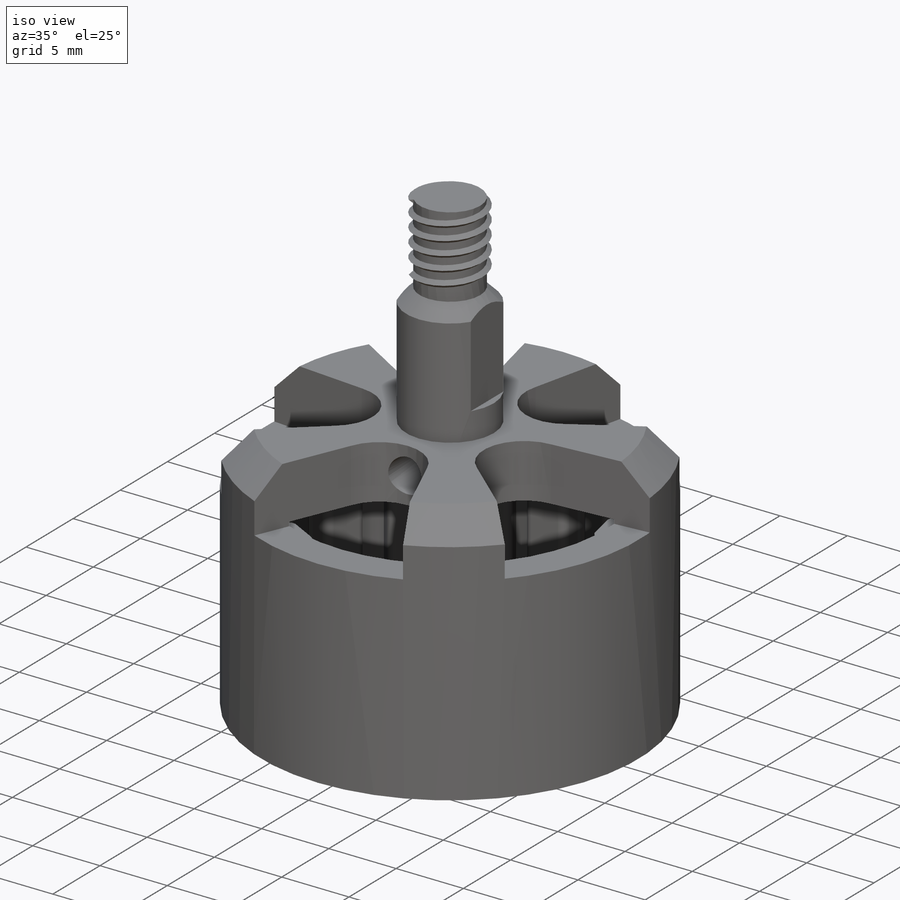
[diagram: iso view]
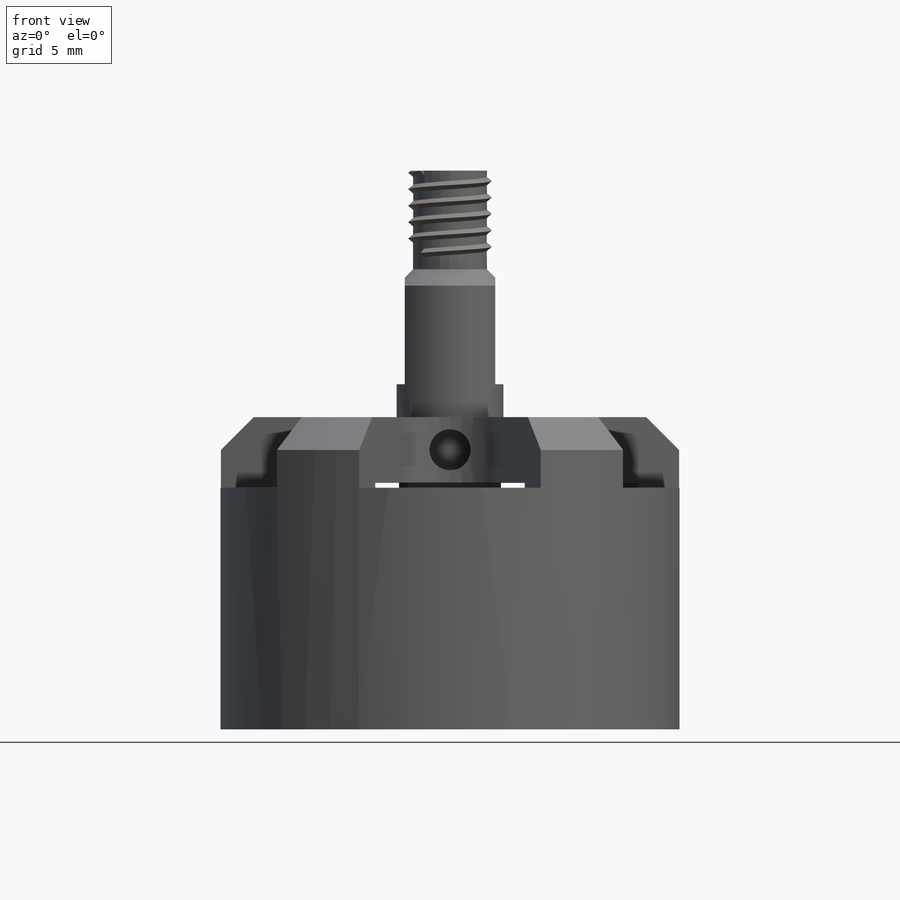
[diagram: front view]
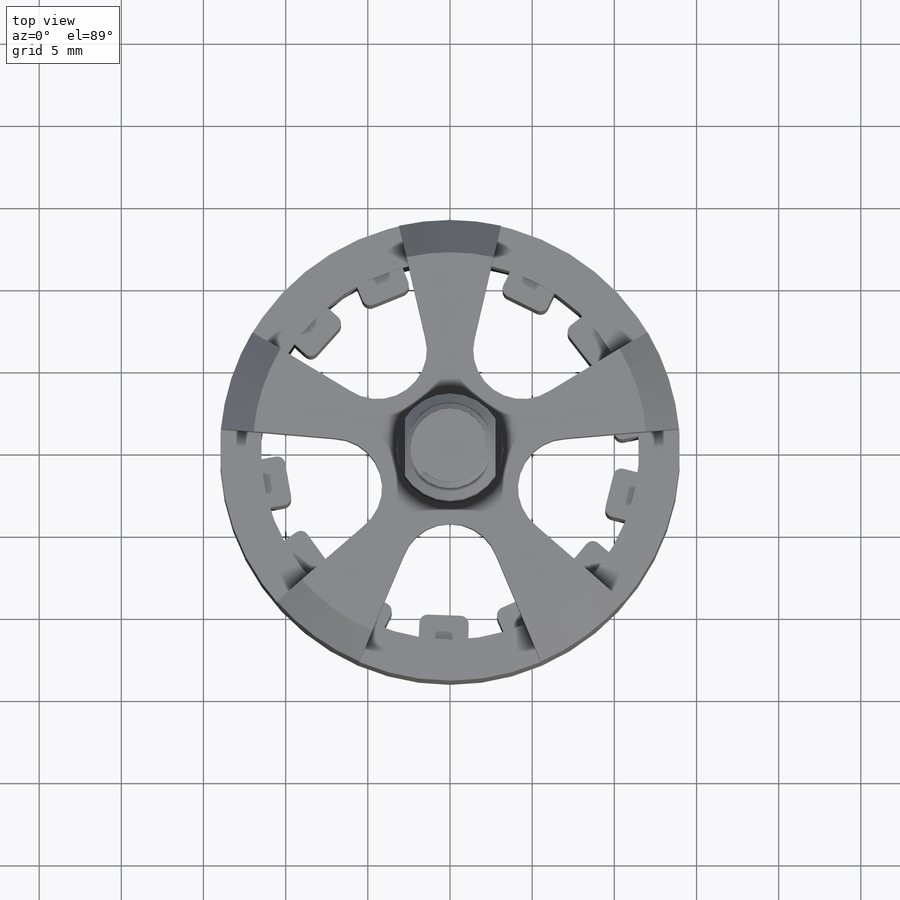
[diagram: top view]
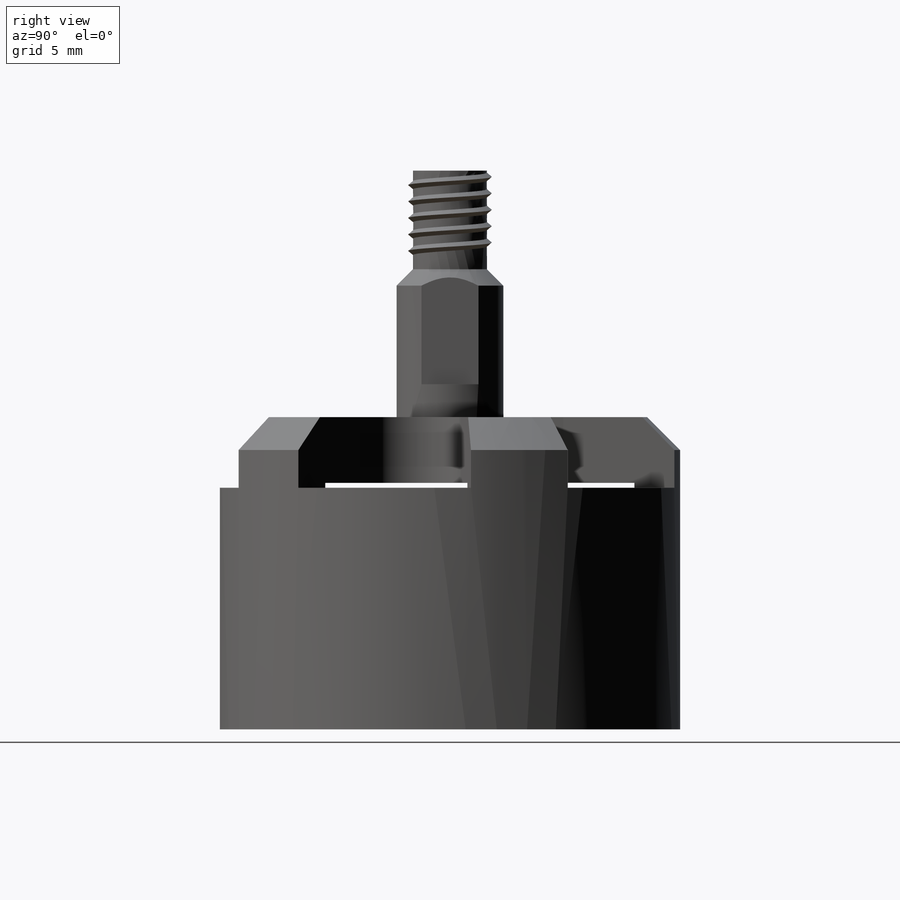
[diagram: right view]
SOLIDWORKS PART (.sldprt)
format: sldprt  version: not decoded by parser v0  size: 425,472 bytes
history: native  units: mm
features: sketch x10, cut_extrude x6, plane x4, pattern_circular x2, material x1, revolve x1, helix x1, sweep x1, extrude x1 (+9 scaffold rows collapsed)
feature tree (36):
  scaffold x9  (default folders/planes/origin — collapsed)
  material  "Malzeme <belirli değil>"
  plane  "Ön Düzlem"
  plane  "Üst Düzlem"
  plane  "Sağ Düzlem"
  sketch  "Çizim1"  dims[D1=2.0mm]
  revolve  "Döndür1"  Angle=360deg
  sketch  "Çizim2"  dims[D1=2.5mm]
  cut_extrude  "Kes-Ekstrüzyon1"  Depth=15mm
  sketch  "Çizim3"  dims[D1=6.0mm]
  cut_extrude  "Kes-Ekstrüzyon2"  Depth=4.3mm
  pattern_circular  "Dairesel Çoğaltma1"  Count=5 Angle=72deg
  sketch  "Çizim4"  dims[D1=10.0mm]
  cut_extrude  "Kes-Ekstrüzyon3"  Depth=2mm
  sketch  "Çizim5"  dims[D1=0.3mm]
  sketch  "Çizim6"
  helix  "Helis/Spiral1"  Pitch=5mm
  sweep  "Süpür1"
  sketch  "Çizim7"
  cut_extrude  "Kes-Ekstrüzyon4"  Depth=5mm
  plane  "Düzlem1"  Offset=1mm
  sketch  "Çizim8"  dims[D1=1.5mm]
  extrude  "Yükseklik-Ekstrüzyon1"  Depth=1mm
  pattern_circular  "Dairesel Çoğaltma2"  Count=14 Angle=26deg
  sketch  "Çizim9"  dims[D1=~3.094066mm]
  cut_extrude  "Kes-Ekstrüzyon5"  [1 undecoded]
  sketch  "Çizim10"  dims[D1=17.0mm]
  cut_extrude  "Kes-Ekstrüzyon6"  Depth=6mm
decode coverage: 18 of 22 modeling features carry decoded parameters
note: ~ marks probable driven/reference dimensions
note: 1 parameter value undecoded
note: suppression state not decoded; provenance and decode notes live in map.json
